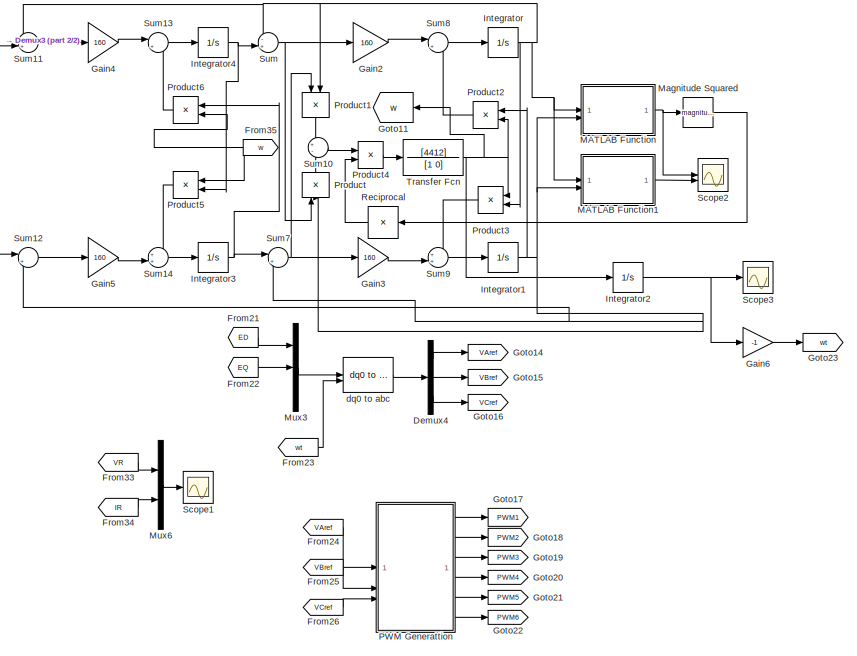
[diagram: root canvas - part 1/2, right side, full height]
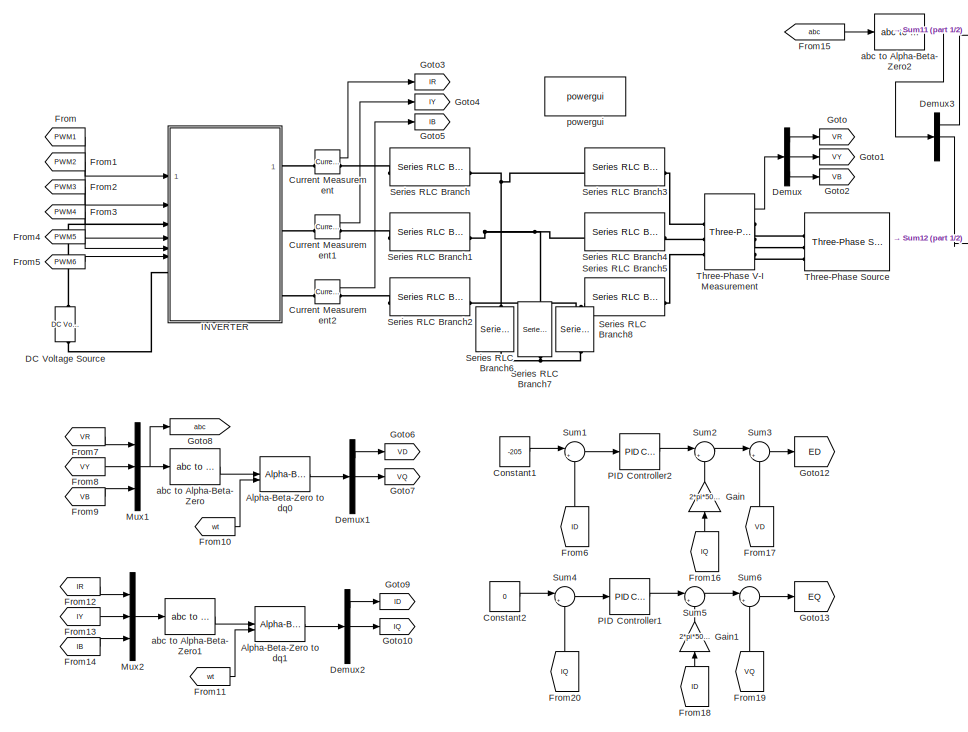
[diagram: root canvas - part 2/2, left side, full height]
MODEL slx_931b7ef05656
KIND model
CONFIG AbsTol = auto
CONFIG EnableMultiTasking = off
CONFIG FixedStep = auto
CONFIG MaxStep = auto
CONFIG MinStep = auto
CONFIG RelTol = 1e-3
CONFIG SampleTimeConstraint = Unconstrained
CONFIG SolverName = VariableStepAuto
CONFIG StartTime = 0.0
CONFIG StopTime = 0.5
BLOCK [Reference] Alpha-Beta-Zero to dq0  REF=spsAlphaBetaZerotodq0Lib/Alpha-Beta-Zero
to dq0
  LibrarySourceBlock = sps_lib/Control/Alpha-Beta-Zero\nto dq0
  SourceBlock = spsAlphaBetaZerotodq0Lib/Alpha-Beta-Zero\nto dq0
  SourceType = Alpha-Beta-Zero to dq0 Transformation
BLOCK [Reference] Alpha-Beta-Zero to dq1  REF=spsAlphaBetaZerotodq0Lib/Alpha-Beta-Zero
to dq0
  LibrarySourceBlock = sps_lib/Control/Alpha-Beta-Zero\nto dq0
  SourceBlock = spsAlphaBetaZerotodq0Lib/Alpha-Beta-Zero\nto dq0
  SourceType = Alpha-Beta-Zero to dq0 Transformation
BLOCK [Constant] Constant1
  Value = -205
BLOCK [Constant] Constant2
  Value = 0
BLOCK [Reference] Current Measurement  REF=spsCurrentMeasurementLib/Current Measurement
  LibrarySourceBlock = sps_lib/Sensors and Measurements/Current Measurement
  SourceBlock = spsCurrentMeasurementLib/Current Measurement
  SourceType = Current Measurement
  UserDataPersistent = on
BLOCK [Reference] Current Measurement1  REF=spsCurrentMeasurementLib/Current Measurement
  LibrarySourceBlock = sps_lib/Sensors and Measurements/Current Measurement
  SourceBlock = spsCurrentMeasurementLib/Current Measurement
  SourceType = Current Measurement
  UserDataPersistent = on
BLOCK [Reference] Current Measurement2  REF=spsCurrentMeasurementLib/Current Measurement
  LibrarySourceBlock = sps_lib/Sensors and Measurements/Current Measurement
  SourceBlock = spsCurrentMeasurementLib/Current Measurement
  SourceType = Current Measurement
  UserDataPersistent = on
BLOCK [Reference] DC Voltage Source  REF=spsDCVoltageSourceLib/DC Voltage Source
  LibrarySourceBlock = sps_lib/Sources/DC Voltage Source
  SourceBlock = spsDCVoltageSourceLib/DC Voltage Source
  SourceType = DC Voltage Source
BLOCK [Demux] Demux
  Outputs = 3
BLOCK [Demux] Demux1
  Outputs = 3
BLOCK [Demux] Demux2
  Outputs = 3
BLOCK [Demux] Demux3
  Outputs = 3
BLOCK [Demux] Demux4
  Outputs = 3
BLOCK [From] From
  GotoTag = PWM1
BLOCK [From] From1
  GotoTag = PWM2
BLOCK [From] From10
  GotoTag = wt
BLOCK [From] From11
  GotoTag = wt
BLOCK [From] From12
  GotoTag = IR
BLOCK [From] From13
  GotoTag = IY
BLOCK [From] From14
  GotoTag = IB
BLOCK [From] From15
  GotoTag = abc
BLOCK [From] From16
  GotoTag = IQ
  NameLocation = right
BLOCK [From] From17
  GotoTag = VD
  NameLocation = right
BLOCK [From] From18
  GotoTag = ID
  NameLocation = right
BLOCK [From] From19
  GotoTag = VQ
  NameLocation = right
BLOCK [From] From2
  GotoTag = PWM3
BLOCK [From] From20
  GotoTag = IQ
  NameLocation = right
BLOCK [From] From21
  GotoTag = ED
BLOCK [From] From22
  GotoTag = EQ
BLOCK [From] From23
  GotoTag = wt
BLOCK [From] From24
  GotoTag = VAref
BLOCK [From] From25
  GotoTag = VBref
BLOCK [From] From26
  GotoTag = VCref
BLOCK [From] From3
  GotoTag = PWM4
BLOCK [From] From33
  GotoTag = VR
BLOCK [From] From34
  GotoTag = IR
BLOCK [From] From35
  GotoTag = w
BLOCK [From] From4
  GotoTag = PWM5
BLOCK [From] From5
  GotoTag = PWM6
BLOCK [From] From6
  GotoTag = ID
  NameLocation = right
BLOCK [From] From7
  GotoTag = VR
BLOCK [From] From8
  GotoTag = VY
BLOCK [From] From9
  GotoTag = VB
BLOCK [Gain] Gain
  Gain = 2*pi*50*1000e-6
  NameLocation = right
BLOCK [Gain] Gain1
  Gain = 2*pi*50*1000e-6
  NameLocation = right
BLOCK [Gain] Gain2
  Gain = 160
BLOCK [Gain] Gain3
  Gain = 160
BLOCK [Gain] Gain4
  Gain = 160
BLOCK [Gain] Gain5
  Gain = 160
BLOCK [Gain] Gain6
  Gain = -1
BLOCK [Goto] Goto
  GotoTag = VR
BLOCK [Goto] Goto1
  GotoTag = VY
BLOCK [Goto] Goto10
  GotoTag = IQ
BLOCK [Goto] Goto11
  GotoTag = w
  NameLocation = top
BLOCK [Goto] Goto12
  GotoTag = ED
BLOCK [Goto] Goto13
  GotoTag = EQ
BLOCK [Goto] Goto14
  GotoTag = VAref
BLOCK [Goto] Goto15
  GotoTag = VBref
BLOCK [Goto] Goto16
  GotoTag = VCref
BLOCK [Goto] Goto17
  GotoTag = PWM1
BLOCK [Goto] Goto18
  GotoTag = PWM2
BLOCK [Goto] Goto19
  GotoTag = PWM3
BLOCK [Goto] Goto2
  GotoTag = VB
BLOCK [Goto] Goto20
  GotoTag = PWM4
BLOCK [Goto] Goto21
  GotoTag = PWM5
BLOCK [Goto] Goto22
  GotoTag = PWM6
BLOCK [Goto] Goto23
  GotoTag = wt
BLOCK [Goto] Goto3
  GotoTag = IR
BLOCK [Goto] Goto4
  GotoTag = IY
BLOCK [Goto] Goto5
  GotoTag = IB
BLOCK [Goto] Goto6
  GotoTag = VD
BLOCK [Goto] Goto7
  GotoTag = VQ
BLOCK [Goto] Goto8
  GotoTag = abc
BLOCK [Goto] Goto9
  GotoTag = ID
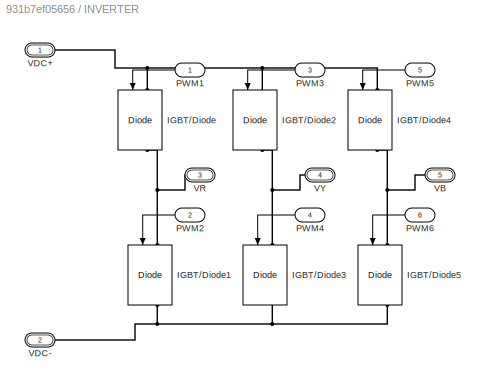
BLOCK [SubSystem] INVERTER
BLOCK [Reference] INVERTER/IGBT//Diode  REF=spsIGBTDiodeLib/IGBT//Diode
  LibrarySourceBlock = sps_lib/Power Electronics/IGBT//Diode
  NameLocation = left
  SourceBlock = spsIGBTDiodeLib/IGBT//Diode
  SourceType = IGBT/Diode
BLOCK [Reference] INVERTER/IGBT//Diode1  REF=spsIGBTDiodeLib/IGBT//Diode
  LibrarySourceBlock = sps_lib/Power Electronics/IGBT//Diode
  NameLocation = left
  SourceBlock = spsIGBTDiodeLib/IGBT//Diode
  SourceType = IGBT/Diode
BLOCK [Reference] INVERTER/IGBT//Diode2  REF=spsIGBTDiodeLib/IGBT//Diode
  LibrarySourceBlock = sps_lib/Power Electronics/IGBT//Diode
  NameLocation = left
  SourceBlock = spsIGBTDiodeLib/IGBT//Diode
  SourceType = IGBT/Diode
BLOCK [Reference] INVERTER/IGBT//Diode3  REF=spsIGBTDiodeLib/IGBT//Diode
  LibrarySourceBlock = sps_lib/Power Electronics/IGBT//Diode
  NameLocation = left
  SourceBlock = spsIGBTDiodeLib/IGBT//Diode
  SourceType = IGBT/Diode
BLOCK [Reference] INVERTER/IGBT//Diode4  REF=spsIGBTDiodeLib/IGBT//Diode
  LibrarySourceBlock = sps_lib/Power Electronics/IGBT//Diode
  NameLocation = left
  SourceBlock = spsIGBTDiodeLib/IGBT//Diode
  SourceType = IGBT/Diode
BLOCK [Reference] INVERTER/IGBT//Diode5  REF=spsIGBTDiodeLib/IGBT//Diode
  LibrarySourceBlock = sps_lib/Power Electronics/IGBT//Diode
  NameLocation = left
  SourceBlock = spsIGBTDiodeLib/IGBT//Diode
  SourceType = IGBT/Diode
BLOCK [Inport] INVERTER/PWM1
  NameLocation = top
BLOCK [Inport] INVERTER/PWM2
  NameLocation = top
  Port = 2
BLOCK [Inport] INVERTER/PWM3
  NameLocation = top
  Port = 3
BLOCK [Inport] INVERTER/PWM4
  NameLocation = top
  Port = 4
BLOCK [Inport] INVERTER/PWM5
  NameLocation = top
  Port = 5
BLOCK [Inport] INVERTER/PWM6
  NameLocation = top
  Port = 6
BLOCK [PMIOPort] INVERTER/VB
  NameLocation = top
  Port = 5
  Side = Right
BLOCK [PMIOPort] INVERTER/VDC+
  Side = Left
BLOCK [PMIOPort] INVERTER/VDC-
  Port = 2
  Side = Left
BLOCK [PMIOPort] INVERTER/VR
  NameLocation = top
  Port = 3
  Side = Right
BLOCK [PMIOPort] INVERTER/VY
  NameLocation = top
  Port = 4
  Side = Right
BLOCK [Integrator] Integrator
  InitialCondition = 1
BLOCK [Integrator] Integrator1
  InitialCondition = 1
BLOCK [Integrator] Integrator2
  InitialCondition = 1
BLOCK [Integrator] Integrator3
  InitialCondition = 1
BLOCK [Integrator] Integrator4
  InitialCondition = 1
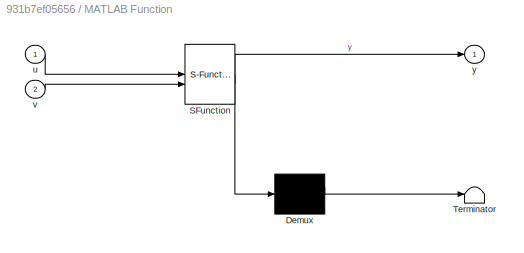
BLOCK [SubSystem] MATLAB Function
  ErrorFcn = Stateflow.Translate.translate
  LibrarySourceBlock = simulink/User-Defined\nFunctions/MATLAB Function
  PermitHierarchicalResolution = ExplicitOnly
  SFBlockType = MATLAB Function
  TreatAsAtomicUnit = on
BLOCK [Demux] MATLAB Function/ Demux 
  Outputs = 1
BLOCK [S-Function] MATLAB Function/ SFunction 
  EnableBusSupport = on
  FunctionName = sf_sfun
  PortCounts = [2 2]
  SFcnIsStateOwnerBlock = off
  SFunctionDeploymentMode = off
  Tag = Stateflow S-Function 2
BLOCK [Terminator] MATLAB Function/ Terminator 
BLOCK [Inport] MATLAB Function/u
BLOCK [Inport] MATLAB Function/v
  Port = 2
BLOCK [Outport] MATLAB Function/y
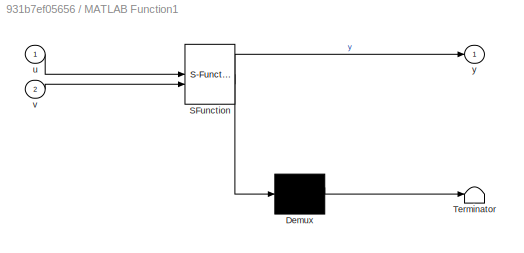
BLOCK [SubSystem] MATLAB Function1
  ErrorFcn = Stateflow.Translate.translate
  LibrarySourceBlock = simulink/User-Defined\nFunctions/MATLAB Function
  PermitHierarchicalResolution = ExplicitOnly
  SFBlockType = MATLAB Function
  TreatAsAtomicUnit = on
BLOCK [Demux] MATLAB Function1/ Demux 
  Outputs = 1
BLOCK [S-Function] MATLAB Function1/ SFunction 
  EnableBusSupport = on
  FunctionName = sf_sfun
  PortCounts = [2 2]
  SFcnIsStateOwnerBlock = off
  SFunctionDeploymentMode = off
  Tag = Stateflow S-Function 1
BLOCK [Terminator] MATLAB Function1/ Terminator 
BLOCK [Inport] MATLAB Function1/u
BLOCK [Inport] MATLAB Function1/v
  Port = 2
BLOCK [Outport] MATLAB Function1/y
BLOCK [Math] Magnitude Squared
  Operator = magnitude^2
BLOCK [Mux] Mux1
  DisplayOption = bar
  Inputs = 3
BLOCK [Mux] Mux2
  DisplayOption = bar
  Inputs = 3
BLOCK [Mux] Mux3
  DisplayOption = bar
  Inputs = 3
BLOCK [Mux] Mux6
  DisplayOption = bar
  Inputs = 2
BLOCK [Reference] PID Controller1  REF=slpidlib/PID Controller
  LibrarySourceBlock = simulink/Continuous/PID Controller
  SourceBlock = slpidlib/PID Controller
  SourceType = PID 1dof
BLOCK [Reference] PID Controller2  REF=slpidlib/PID Controller
  LibrarySourceBlock = simulink/Continuous/PID Controller
  SourceBlock = slpidlib/PID Controller
  SourceType = PID 1dof
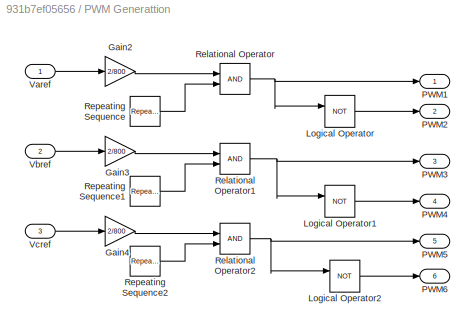
BLOCK [SubSystem] PWM Generattion 
BLOCK [Gain] PWM Generattion /Gain2
  Gain = 2/800
BLOCK [Gain] PWM Generattion /Gain3
  Gain = 2/800
BLOCK [Gain] PWM Generattion /Gain4
  Gain = 2/800
BLOCK [Logic] PWM Generattion /Logical Operator
  AllPortsSameDT = off
  Operator = NOT
  OutDataTypeStr = boolean
BLOCK [Logic] PWM Generattion /Logical Operator1
  AllPortsSameDT = off
  Operator = NOT
  OutDataTypeStr = boolean
BLOCK [Logic] PWM Generattion /Logical Operator2
  AllPortsSameDT = off
  Operator = NOT
  OutDataTypeStr = boolean
BLOCK [Outport] PWM Generattion /PWM1
BLOCK [Outport] PWM Generattion /PWM2
  Port = 2
BLOCK [Outport] PWM Generattion /PWM3
  Port = 3
BLOCK [Outport] PWM Generattion /PWM4
  Port = 4
BLOCK [Outport] PWM Generattion /PWM5
  Port = 5
BLOCK [Outport] PWM Generattion /PWM6
  Port = 6
BLOCK [RelationalOperator] PWM Generattion /Relational Operator
  InputSameDT = off
  OutDataTypeStr = boolean
  RndMeth = Simplest
BLOCK [RelationalOperator] PWM Generattion /Relational Operator1
  InputSameDT = off
  OutDataTypeStr = boolean
  RndMeth = Simplest
BLOCK [RelationalOperator] PWM Generattion /Relational Operator2
  InputSameDT = off
  OutDataTypeStr = boolean
  RndMeth = Simplest
BLOCK [Reference] PWM Generattion /Repeating Sequence  REF=simulink/Sources/Repeating
Sequence
  SourceBlock = simulink/Sources/Repeating\nSequence
  SourceType = Repeating table
BLOCK [Reference] PWM Generattion /Repeating Sequence1  REF=simulink/Sources/Repeating
Sequence
  SourceBlock = simulink/Sources/Repeating\nSequence
  SourceType = Repeating table
BLOCK [Reference] PWM Generattion /Repeating Sequence2  REF=simulink/Sources/Repeating
Sequence
  SourceBlock = simulink/Sources/Repeating\nSequence
  SourceType = Repeating table
BLOCK [Inport] PWM Generattion /Varef
BLOCK [Inport] PWM Generattion /Vbref
  Port = 2
BLOCK [Inport] PWM Generattion /Vcref
  Port = 3
BLOCK [Product] Product
  NameLocation = right
BLOCK [Product] Product1
  NameLocation = left
BLOCK [Product] Product2
  NameLocation = top
BLOCK [Product] Product3
  NameLocation = top
BLOCK [Product] Product4
BLOCK [Product] Product5
  NameLocation = top
BLOCK [Product] Product6
  NameLocation = top
BLOCK [Product] Reciprocal
  Inputs = /
  NameLocation = top
  RndMeth = Zero
  SaturateOnIntegerOverflow = on
BLOCK [Scope] Scope1
  Floating = off
  NumInputPorts = 1
  ScopeSpecificationString = Simulink.scopes.TimeScopeBlockCfg('CurrentConfiguration', extmgr.ConfigurationSet(extmgr.Configuration('Core','General UI',true),extmgr.Configuration('Core','Source UI',true),extmgr.Configuration('Sources','WiredSimulink',true,'DataLoggingVariableName','ScopeData3','DataLogging',true,'DataLoggingLimitDataPoints',true,'DataLoggingMaxPoints','100000'),extmgr.Configuration('Visuals','Time Domain',tru...<+1635ch>
BLOCK [Scope] Scope2
  Floating = off
  NumInputPorts = 2
  ScopeSpecificationString = Simulink.scopes.TimeScopeBlockCfg('CurrentConfiguration', extmgr.ConfigurationSet(extmgr.Configuration('Core','General UI',true),extmgr.Configuration('Core','Source UI',true),extmgr.Configuration('Sources','WiredSimulink',true,'DataLoggingVariableName','ScopeData2'),extmgr.Configuration('Visuals','Time Domain',true,'SerializedDisplays',{struct('MinYLimReal','-37.28241','MaxYLimReal','349.68384','Y...<+2072ch>
BLOCK [Scope] Scope3
  Floating = off
  NumInputPorts = 1
  ScopeSpecificationString = Simulink.scopes.TimeScopeBlockCfg('CurrentConfiguration', extmgr.ConfigurationSet(extmgr.Configuration('Core','General UI',true),extmgr.Configuration('Core','Source UI',true),extmgr.Configuration('Sources','WiredSimulink',true,'DataLoggingVariableName','ScopeData1'),extmgr.Configuration('Visuals','Time Domain',true,'SerializedDisplays',{struct('MinYLimReal','-340.22657','MaxYLimReal','38.98854','Y...<+1382ch>
BLOCK [Reference] Series RLC Branch  REF=spsSeriesRLCBranchLib/Series RLC Branch
  LibrarySourceBlock = sps_lib/Passives/Series RLC Branch
  SourceBlock = spsSeriesRLCBranchLib/Series RLC Branch
  SourceType = Series RLC Branch
BLOCK [Reference] Series RLC Branch1  REF=spsSeriesRLCBranchLib/Series RLC Branch
  LibrarySourceBlock = sps_lib/Passives/Series RLC Branch
  SourceBlock = spsSeriesRLCBranchLib/Series RLC Branch
  SourceType = Series RLC Branch
BLOCK [Reference] Series RLC Branch2  REF=spsSeriesRLCBranchLib/Series RLC Branch
  LibrarySourceBlock = sps_lib/Passives/Series RLC Branch
  SourceBlock = spsSeriesRLCBranchLib/Series RLC Branch
  SourceType = Series RLC Branch
BLOCK [Reference] Series RLC Branch3  REF=spsSeriesRLCBranchLib/Series RLC Branch
  LibrarySourceBlock = sps_lib/Passives/Series RLC Branch
  SourceBlock = spsSeriesRLCBranchLib/Series RLC Branch
  SourceType = Series RLC Branch
BLOCK [Reference] Series RLC Branch4  REF=spsSeriesRLCBranchLib/Series RLC Branch
  LibrarySourceBlock = sps_lib/Passives/Series RLC Branch
  SourceBlock = spsSeriesRLCBranchLib/Series RLC Branch
  SourceType = Series RLC Branch
BLOCK [Reference] Series RLC Branch5  REF=spsSeriesRLCBranchLib/Series RLC Branch
  LibrarySourceBlock = sps_lib/Passives/Series RLC Branch
  SourceBlock = spsSeriesRLCBranchLib/Series RLC Branch
  SourceType = Series RLC Branch
BLOCK [Reference] Series RLC Branch6  REF=spsSeriesRLCBranchLib/Series RLC Branch
  LibrarySourceBlock = sps_lib/Passives/Series RLC Branch
  NameLocation = left
  SourceBlock = spsSeriesRLCBranchLib/Series RLC Branch
  SourceType = Series RLC Branch
BLOCK [Reference] Series RLC Branch7  REF=spsSeriesRLCBranchLib/Series RLC Branch
  LibrarySourceBlock = sps_lib/Passives/Series RLC Branch
  NameLocation = left
  SourceBlock = spsSeriesRLCBranchLib/Series RLC Branch
  SourceType = Series RLC Branch
BLOCK [Reference] Series RLC Branch8  REF=spsSeriesRLCBranchLib/Series RLC Branch
  LibrarySourceBlock = sps_lib/Passives/Series RLC Branch
  NameLocation = left
  SourceBlock = spsSeriesRLCBranchLib/Series RLC Branch
  SourceType = Series RLC Branch
BLOCK [Sum] Sum
  Inputs = -+|
BLOCK [Sum] Sum1
  Inputs = |+-
BLOCK [Sum] Sum10
  Inputs = +-
BLOCK [Sum] Sum11
  Inputs = -+|
BLOCK [Sum] Sum12
  Inputs = |+-
BLOCK [Sum] Sum13
  Inputs = |+-
BLOCK [Sum] Sum14
  Inputs = ++|
BLOCK [Sum] Sum2
  Inputs = |++
BLOCK [Sum] Sum3
  Inputs = |++
BLOCK [Sum] Sum4
  Inputs = |+-
BLOCK [Sum] Sum5
  Inputs = |+-
BLOCK [Sum] Sum6
  Inputs = |++
BLOCK [Sum] Sum7
  Inputs = |+-
BLOCK [Sum] Sum8
  Inputs = |+-
BLOCK [Sum] Sum9
  Inputs = ++|
BLOCK [Reference] Three-Phase Source  REF=spsThreePhaseSourceLib/Three-Phase Source
  LibrarySourceBlock = sps_lib/Sources/Three-Phase Source
  SourceBlock = spsThreePhaseSourceLib/Three-Phase Source
  SourceType = Three-Phase Source
BLOCK [Reference] Three-Phase V-I Measurement  REF=spsThreePhaseVIMeasurementLib/Three-Phase
V-I Measurement
  LibrarySourceBlock = sps_lib/Sensors and Measurements/Three-Phase\nV-I Measurement
  SourceBlock = spsThreePhaseVIMeasurementLib/Three-Phase\nV-I Measurement
  SourceType = Three-Phase VI Measurement
BLOCK [TransferFcn] Transfer Fcn
  Denominator = [1 0]
  Numerator = [4412]
BLOCK [Reference] abc to Alpha-Beta-Zero  REF=spsabctoAlphaBetaZeroLib/abc to
Alpha-Beta-Zero
  LibrarySourceBlock = sps_lib/Control/abc to\nAlpha-Beta-Zero
  SourceBlock = spsabctoAlphaBetaZeroLib/abc to\nAlpha-Beta-Zero
  SourceType = abc to Alpha-Beta-Zero Transformation
BLOCK [Reference] abc to Alpha-Beta-Zero1  REF=spsabctoAlphaBetaZeroLib/abc to
Alpha-Beta-Zero
  LibrarySourceBlock = sps_lib/Control/abc to\nAlpha-Beta-Zero
  SourceBlock = spsabctoAlphaBetaZeroLib/abc to\nAlpha-Beta-Zero
  SourceType = abc to Alpha-Beta-Zero Transformation
BLOCK [Reference] abc to Alpha-Beta-Zero2  REF=spsabctoAlphaBetaZeroLib/abc to
Alpha-Beta-Zero
  LibrarySourceBlock = sps_lib/Control/abc to\nAlpha-Beta-Zero
  SourceBlock = spsabctoAlphaBetaZeroLib/abc to\nAlpha-Beta-Zero
  SourceType = abc to Alpha-Beta-Zero Transformation
BLOCK [Reference] dq0 to abc  REF=spsdq0toabcLib/dq0 to abc
  LibrarySourceBlock = sps_lib/Control/dq0 to abc
  SourceBlock = spsdq0toabcLib/dq0 to abc
  SourceType = dq0 to abc Transformation
BLOCK [Reference] powergui  REF=spspowerguiLib/powergui
  LibrarySourceBlock = sps_lib/powergui
  Priority = 1
  SourceBlock = spspowerguiLib/powergui
  SourceType = PSB option menu block
LINE Alpha-Beta-Zero to dq0:1 -> Demux1:1
LINE Alpha-Beta-Zero to dq1:1 -> Demux2:1
LINE Constant1:1 -> Sum1:1
LINE Constant2:1 -> Sum4:1
LINE Current Measurement1:1 -> Goto4:1
LINE Current Measurement2:1 -> Goto5:1
LINE Current Measurement:1 -> Goto3:1
LINE Demux1:1 -> Goto6:1
LINE Demux1:2 -> Goto7:1
LINE Demux2:1 -> Goto9:1
LINE Demux2:2 -> Goto10:1
LINE Demux3:1 -> Sum11:2
LINE Demux3:2 -> Sum12:1
LINE Demux4:1 -> Goto14:1
LINE Demux4:2 -> Goto15:1
LINE Demux4:3 -> Goto16:1
LINE Demux:1 -> Goto:1
LINE Demux:2 -> Goto1:1
LINE Demux:3 -> Goto2:1
LINE From10:1 -> Alpha-Beta-Zero to dq0:2
LINE From11:1 -> Alpha-Beta-Zero to dq1:2
LINE From12:1 -> Mux2:1
LINE From13:1 -> Mux2:2
LINE From14:1 -> Mux2:3
LINE From15:1 -> abc to Alpha-Beta-Zero2:1
LINE From16:1 -> Gain:1
LINE From17:1 -> Sum3:2
LINE From18:1 -> Gain1:1
LINE From19:1 -> Sum6:2
LINE From1:1 -> INVERTER:2
LINE From20:1 -> Sum4:2
LINE From21:1 -> Mux3:1
LINE From22:1 -> Mux3:2
LINE From23:1 -> dq0 to abc:2
LINE From24:1 -> PWM Generattion :1
LINE From25:1 -> PWM Generattion :2
LINE From26:1 -> PWM Generattion :3
LINE From2:1 -> INVERTER:3
LINE From33:1 -> Mux6:1
LINE From34:1 -> Mux6:2
NET From35:1 -> Product5:1, Product6:2
LINE From3:1 -> INVERTER:4
LINE From4:1 -> INVERTER:5
LINE From5:1 -> INVERTER:6
LINE From6:1 -> Sum1:2
LINE From7:1 -> Mux1:1
LINE From8:1 -> Mux1:2
LINE From9:1 -> Mux1:3
LINE From:1 -> INVERTER:1
LINE Gain1:1 -> Sum5:2
LINE Gain2:1 -> Sum8:1
LINE Gain3:1 -> Sum9:2
LINE Gain4:1 -> Sum13:1
LINE Gain5:1 -> Sum14:2
LINE Gain6:1 -> Goto23:1
LINE Gain:1 -> Sum2:2
LINE INVERTER/PWM1:1 -> INVERTER/IGBT//Diode:1
LINE INVERTER/PWM2:1 -> INVERTER/IGBT//Diode1:1
LINE INVERTER/PWM3:1 -> INVERTER/IGBT//Diode2:1
LINE INVERTER/PWM4:1 -> INVERTER/IGBT//Diode3:1
LINE INVERTER/PWM5:1 -> INVERTER/IGBT//Diode4:1
LINE INVERTER/PWM6:1 -> INVERTER/IGBT//Diode5:1
NET Integrator1:1 -> MATLAB Function1:2, MATLAB Function:2, Product2:1, Product:2, Sum12:2, Sum7:2
NET Integrator2:1 -> Gain6:1, Scope3:1
NET Integrator3:1 -> Product6:1, Sum7:1
NET Integrator4:1 -> Product5:2, Sum:2
NET Integrator:1 -> MATLAB Function1:1, MATLAB Function:1, Product1:2, Product3:2, Sum11:1, Sum:1
LINE MATLAB Function1:1 -> Scope2:2
NET MATLAB Function:1 -> Magnitude Squared:1, Scope2:1
LINE Magnitude Squared:1 -> Reciprocal:1
NET Mux1:1 -> Goto8:1, abc to Alpha-Beta-Zero:1
LINE Mux2:1 -> abc to Alpha-Beta-Zero1:1
LINE Mux3:1 -> dq0 to abc:1
LINE Mux6:1 -> Scope1:1
LINE PID Controller1:1 -> Sum5:1
LINE PID Controller2:1 -> Sum2:1
LINE PWM Generattion /Gain2:1 -> PWM Generattion /Relational Operator:1
LINE PWM Generattion /Gain3:1 -> PWM Generattion /Relational Operator1:1
LINE PWM Generattion /Gain4:1 -> PWM Generattion /Relational Operator2:1
LINE PWM Generattion /Logical Operator1:1 -> PWM Generattion /PWM4:1
LINE PWM Generattion /Logical Operator2:1 -> PWM Generattion /PWM6:1
LINE PWM Generattion /Logical Operator:1 -> PWM Generattion /PWM2:1
NET PWM Generattion /Relational Operator1:1 -> PWM Generattion /Logical Operator1:1, PWM Generattion /PWM3:1
NET PWM Generattion /Relational Operator2:1 -> PWM Generattion /Logical Operator2:1, PWM Generattion /PWM5:1
NET PWM Generattion /Relational Operator:1 -> PWM Generattion /Logical Operator:1, PWM Generattion /PWM1:1
LINE PWM Generattion /Repeating Sequence1:1 -> PWM Generattion /Relational Operator1:2
LINE PWM Generattion /Repeating Sequence2:1 -> PWM Generattion /Relational Operator2:2
LINE PWM Generattion /Repeating Sequence:1 -> PWM Generattion /Relational Operator:2
LINE PWM Generattion /Varef:1 -> PWM Generattion /Gain2:1
LINE PWM Generattion /Vbref:1 -> PWM Generattion /Gain3:1
LINE PWM Generattion /Vcref:1 -> PWM Generattion /Gain4:1
LINE PWM Generattion :1 -> Goto17:1
LINE PWM Generattion :2 -> Goto18:1
LINE PWM Generattion :3 -> Goto19:1
LINE PWM Generattion :4 -> Goto20:1
LINE PWM Generattion :5 -> Goto21:1
LINE PWM Generattion :6 -> Goto22:1
LINE Product1:1 -> Sum10:1
LINE Product2:1 -> Sum8:2
LINE Product3:1 -> Sum9:1
LINE Product4:1 -> Transfer Fcn:1
LINE Product5:1 -> Sum14:1
LINE Product6:1 -> Sum13:2
LINE Product:1 -> Sum10:2
LINE Reciprocal:1 -> Product4:2
LINE Sum10:1 -> Product4:1
LINE Sum11:1 -> Gain4:1
LINE Sum12:1 -> Gain5:1
LINE Sum13:1 -> Integrator4:1
LINE Sum14:1 -> Integrator3:1
LINE Sum1:1 -> PID Controller2:1
LINE Sum2:1 -> Sum3:1
LINE Sum3:1 -> Goto12:1
LINE Sum4:1 -> PID Controller1:1
LINE Sum5:1 -> Sum6:1
LINE Sum6:1 -> Goto13:1
NET Sum7:1 -> Gain3:1, Product1:1
LINE Sum8:1 -> Integrator:1
LINE Sum9:1 -> Integrator1:1
NET Sum:1 -> Gain2:1, Product:1
LINE Three-Phase V-I Measurement:1 -> Demux:1
NET Transfer Fcn:1 -> Goto11:1, Integrator2:1, Product2:2, Product3:1
LINE abc to Alpha-Beta-Zero1:1 -> Alpha-Beta-Zero to dq1:1
LINE abc to Alpha-Beta-Zero2:1 -> Demux3:1
LINE abc to Alpha-Beta-Zero:1 -> Alpha-Beta-Zero to dq0:1
LINE dq0 to abc:1 -> Demux4:1
PLINE Current Measurement1:LConn1 -- INVERTER:RConn2
PLINE Current Measurement1:RConn1 -- Series RLC Branch1:LConn1
PLINE Current Measurement2:LConn1 -- INVERTER:RConn3
PLINE Current Measurement2:RConn1 -- Series RLC Branch2:LConn1
PLINE Current Measurement:LConn1 -- INVERTER:RConn1
PLINE Current Measurement:RConn1 -- Series RLC Branch:LConn1
PLINE DC Voltage Source:LConn1 -- INVERTER:LConn2
PLINE DC Voltage Source:RConn1 -- INVERTER:LConn1
PNET net1: INVERTER/IGBT//Diode1:LConn1 -- INVERTER/IGBT//Diode:RConn1 -- INVERTER/VR:RConn1
PNET net2: INVERTER/IGBT//Diode1:RConn1 -- INVERTER/IGBT//Diode3:RConn1 -- INVERTER/IGBT//Diode5:RConn1 -- INVERTER/VDC-:RConn1
PNET net3: INVERTER/IGBT//Diode2:LConn1 -- INVERTER/IGBT//Diode4:LConn1 -- INVERTER/IGBT//Diode:LConn1 -- INVERTER/VDC+:RConn1
PNET net4: INVERTER/IGBT//Diode2:RConn1 -- INVERTER/IGBT//Diode3:LConn1 -- INVERTER/VY:RConn1
PNET net5: INVERTER/IGBT//Diode4:RConn1 -- INVERTER/IGBT//Diode5:LConn1 -- INVERTER/VB:RConn1
PNET net6: Series RLC Branch1:RConn1 -- Series RLC Branch4:LConn1 -- Series RLC Branch7:LConn1
PNET net7: Series RLC Branch2:RConn1 -- Series RLC Branch5:LConn1 -- Series RLC Branch8:LConn1
PNET net8: Series RLC Branch3:LConn1 -- Series RLC Branch6:LConn1 -- Series RLC Branch:RConn1
PLINE Series RLC Branch3:RConn1 -- Three-Phase V-I Measurement:LConn1
PLINE Series RLC Branch4:RConn1 -- Three-Phase V-I Measurement:LConn2
PLINE Series RLC Branch5:RConn1 -- Three-Phase V-I Measurement:LConn3
PNET net9: Series RLC Branch6:RConn1 -- Series RLC Branch7:RConn1 -- Series RLC Branch8:RConn1
PLINE Three-Phase Source:RConn1 -- Three-Phase V-I Measurement:RConn1
PLINE Three-Phase Source:RConn2 -- Three-Phase V-I Measurement:RConn2
PLINE Three-Phase Source:RConn3 -- Three-Phase V-I Measurement:RConn3
note: NET lines group one-source signal fan-out (src -> all destinations, sorted); 1:1 wires keep LINE; PNET lines group multi-terminal physical nets as a canonical sorted terminal list (undirected conserving connections); 2-terminal nets keep the pairwise PLINE form
CHART MATLAB Function states=1 transitions=1
  STATE_LABEL 'eML_blk_kernel()'
  STATE_LABEL 'SCRIPT:\nfunction y = fcn(u,v)\n\ny = sqrt((u^2)+(v^2));\n'
CHART MATLAB Function1 states=1 transitions=1
  STATE_LABEL 'eML_blk_kernel()'
  STATE_LABEL 'SCRIPT:\nfunction y = fcn(u,v)\n\ny = atan(v/u);\n'
CHART  states=0 transitions=0
CHART  states=0 transitions=0
